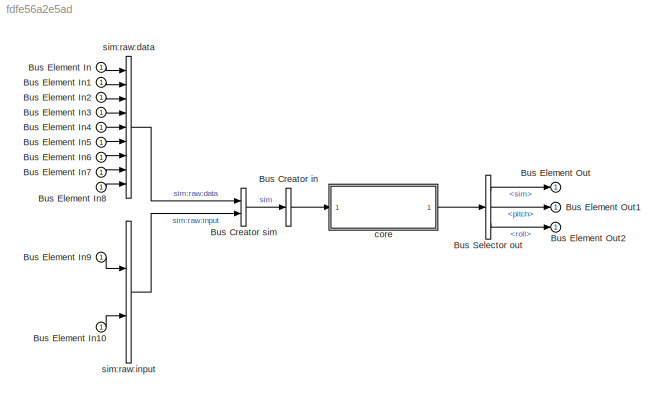
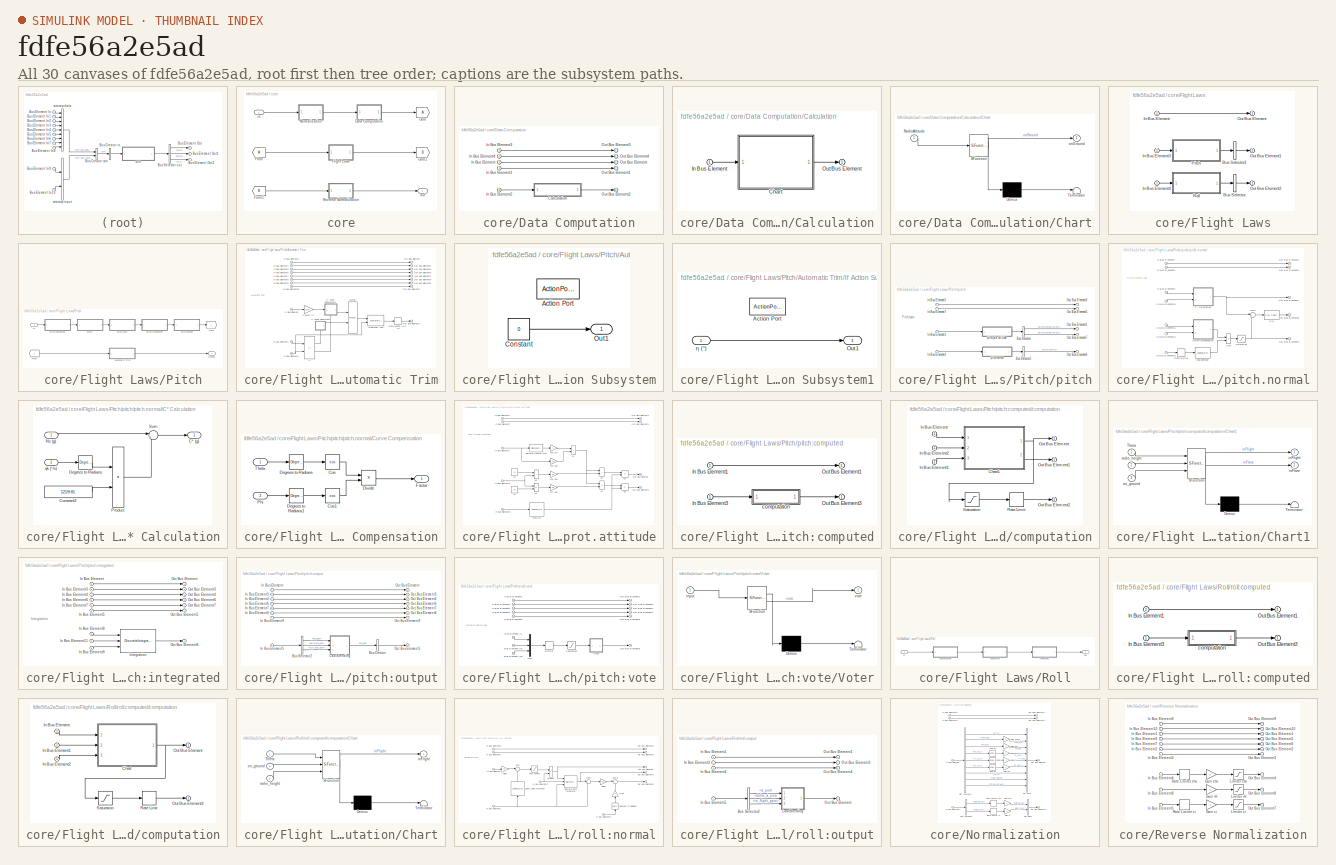
[diagram: thumbnail index - all 30 canvases of the model, root first then tree order]
MODEL slx_fdfe56a2e5ad
KIND model
CONFIG AbsTol = auto
CONFIG EnableMultiTasking = off
CONFIG FixedStep = 0.02
CONFIG MaxStep = auto
CONFIG MinStep = auto
CONFIG RelTol = 1e-3
CONFIG SampleTimeConstraint = Unconstrained
CONFIG SolverName = FixedStepAuto
CONFIG StartTime = 0.0
CONFIG StopTime = 10.0
BLOCK [BusCreator] Bus Creator in
  DisplayOption = bar
  InheritFromInputs = on
  Inputs = 1
  Ports = [1, 1]
BLOCK [BusCreator] Bus Creator sim
  DisplayOption = bar
  InheritFromInputs = on
  Inputs = 2
  Ports = [2, 1]
BLOCK [Inport] Bus Element In
BLOCK [Inport] Bus Element In1
BLOCK [Inport] Bus Element In10
BLOCK [Inport] Bus Element In2
BLOCK [Inport] Bus Element In3
BLOCK [Inport] Bus Element In4
BLOCK [Inport] Bus Element In5
BLOCK [Inport] Bus Element In6
BLOCK [Inport] Bus Element In7
BLOCK [Inport] Bus Element In8
BLOCK [Inport] Bus Element In9
BLOCK [Outport] Bus Element Out
BLOCK [Outport] Bus Element Out1
BLOCK [Outport] Bus Element Out2
BLOCK [BusSelector] Bus Selector out
  OutputSignals = sim,pitch,roll
  Ports = [1, 3]
BLOCK [SubSystem] core
  Ports = [1, 1]
  RequestExecContextInheritance = off
BLOCK [SubSystem] core/Data Computation
  Ports = [1, 1]
  RequestExecContextInheritance = off
BLOCK [SubSystem] core/Data Computation/Calculation
  Ports = [1, 1]
  RequestExecContextInheritance = off
BLOCK [SubSystem] core/Data Computation/Calculation/Chart
  ErrorFcn = Stateflow.Translate.translate
  PermitHierarchicalResolution = ExplicitOnly
  Ports = [1, 1]
  RequestExecContextInheritance = off
  SFBlockType = Chart
  TreatAsAtomicUnit = on
BLOCK [Demux] core/Data Computation/Calculation/Chart/ Demux 
  Outputs = 1
  Ports = [1, 1]
BLOCK [S-Function] core/Data Computation/Calculation/Chart/ SFunction 
  EnableBusSupport = on
  FunctionName = sf_sfun
  PortCounts = [1 2]
  Ports = [1, 2]
  SFcnIsStateOwnerBlock = off
  SFunctionDeploymentMode = off
  Tag = Stateflow S-Function 1
BLOCK [Terminator] core/Data Computation/Calculation/Chart/ Terminator 
BLOCK [Inport] core/Data Computation/Calculation/Chart/RadioAltitude
BLOCK [Outport] core/Data Computation/Calculation/Chart/onGround
BLOCK [Inport] core/Data Computation/Calculation/In Bus Element
BLOCK [Outport] core/Data Computation/Calculation/Out Bus Element
BLOCK [Inport] core/Data Computation/In Bus Element
BLOCK [Inport] core/Data Computation/In Bus Element1
BLOCK [Inport] core/Data Computation/In Bus Element2
BLOCK [Inport] core/Data Computation/In Bus Element3
BLOCK [Inport] core/Data Computation/In Bus Element4
BLOCK [Outport] core/Data Computation/Out Bus Element
BLOCK [Outport] core/Data Computation/Out Bus Element1
BLOCK [Outport] core/Data Computation/Out Bus Element2
BLOCK [Outport] core/Data Computation/Out Bus Element3
BLOCK [Outport] core/Data Computation/Out Bus Element4
BLOCK [SubSystem] core/Flight Laws
  Ports = [1, 1]
  RequestExecContextInheritance = off
BLOCK [BusSelector] core/Flight Laws/Bus Selector
  OutputAsBus = on
  OutputSignals = roll.roll:data:computed,roll.roll:normal,roll.roll:output
  Ports = [1, 1]
BLOCK [BusSelector] core/Flight Laws/Bus Selector1
  OutputAsBus = on
  OutputSignals = pitch.pitch:data:computed,pitch.pitch:normal,pitch.pitch:protection:attitude:min,pitch.pitch:protection:attitude:max,pitch.pitch:vote,pitch.pitch:integrated,pitch.pitch:output
  Ports = [1, 1]
BLOCK [Inport] core/Flight Laws/In Bus Element
BLOCK [Inport] core/Flight Laws/In Bus Element3
BLOCK [Inport] core/Flight Laws/In Bus Element4
BLOCK [Outport] core/Flight Laws/Out Bus Element
BLOCK [Outport] core/Flight Laws/Out Bus Element1
BLOCK [Outport] core/Flight Laws/Out Bus Element2
BLOCK [SubSystem] core/Flight Laws/Pitch
  Ports = [1, 1]
  RequestExecContextInheritance = off
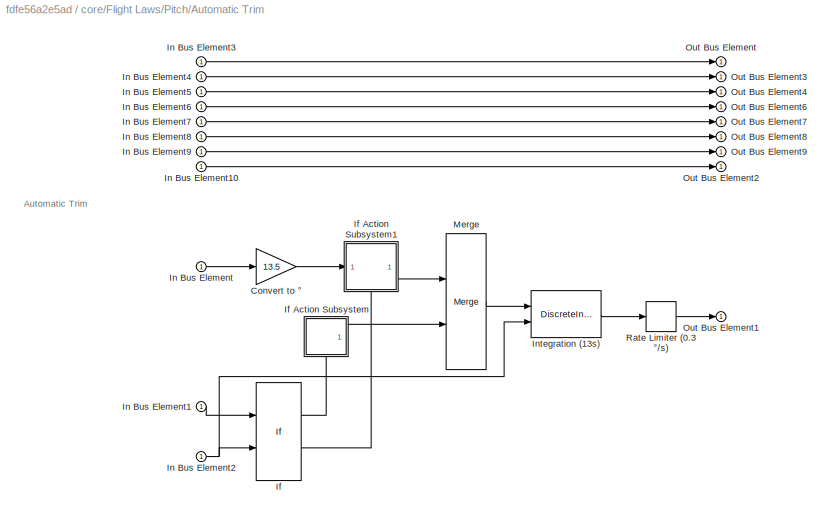
BLOCK [SubSystem] core/Flight Laws/Pitch/Automatic Trim
  Ports = [1, 1]
  RequestExecContextInheritance = off
BLOCK [Gain] core/Flight Laws/Pitch/Automatic Trim/Convert to °
  Gain = 13.5
BLOCK [If] core/Flight Laws/Pitch/Automatic Trim/If
  IfExpression = u2 == 0 | u1 > 1.25 | u1 < 0.5
  NumInputs = 2
  Ports = [2, 2]
BLOCK [SubSystem] core/Flight Laws/Pitch/Automatic Trim/If Action Subsystem
  NameLocation = top
  Ports = [0, 1, 0, 0, 0, 0, 0, 1]
  RequestExecContextInheritance = off
  TreatAsAtomicUnit = on
BLOCK [ActionPort] core/Flight Laws/Pitch/Automatic Trim/If Action Subsystem/Action Port
  InitializeStates = reset
BLOCK [Constant] core/Flight Laws/Pitch/Automatic Trim/If Action Subsystem/Constant
  Value = 0
BLOCK [Outport] core/Flight Laws/Pitch/Automatic Trim/If Action Subsystem/Out1
BLOCK [SubSystem] core/Flight Laws/Pitch/Automatic Trim/If Action Subsystem1
  NameLocation = top
  Ports = [1, 1, 0, 0, 0, 0, 0, 1]
  RequestExecContextInheritance = off
  TreatAsAtomicUnit = on
BLOCK [ActionPort] core/Flight Laws/Pitch/Automatic Trim/If Action Subsystem1/Action Port
BLOCK [Outport] core/Flight Laws/Pitch/Automatic Trim/If Action Subsystem1/Out1
BLOCK [Inport] core/Flight Laws/Pitch/Automatic Trim/If Action Subsystem1/η (°)
BLOCK [Inport] core/Flight Laws/Pitch/Automatic Trim/In Bus Element
BLOCK [Inport] core/Flight Laws/Pitch/Automatic Trim/In Bus Element1
BLOCK [Inport] core/Flight Laws/Pitch/Automatic Trim/In Bus Element10
BLOCK [Inport] core/Flight Laws/Pitch/Automatic Trim/In Bus Element2
BLOCK [Inport] core/Flight Laws/Pitch/Automatic Trim/In Bus Element3
BLOCK [Inport] core/Flight Laws/Pitch/Automatic Trim/In Bus Element4
BLOCK [Inport] core/Flight Laws/Pitch/Automatic Trim/In Bus Element5
BLOCK [Inport] core/Flight Laws/Pitch/Automatic Trim/In Bus Element6
BLOCK [Inport] core/Flight Laws/Pitch/Automatic Trim/In Bus Element7
BLOCK [Inport] core/Flight Laws/Pitch/Automatic Trim/In Bus Element8
BLOCK [Inport] core/Flight Laws/Pitch/Automatic Trim/In Bus Element9
BLOCK [DiscreteIntegrator] core/Flight Laws/Pitch/Automatic Trim/Integration (13s)
  ExternalReset = falling
  ICPrevOutput = DiscIntNeverNeededParam
  ICPrevScaledInput = DiscIntNeverNeededParam
  InitialConditionSetting = Auto
  LimitOutput = on
  LowerSaturationLimit = -11
  Ports = [2, 1]
  SampleTime = -1
  UpperSaturationLimit = 3.5
  gainval = 1/13
BLOCK [Merge] core/Flight Laws/Pitch/Automatic Trim/Merge
  Ports = [2, 1]
BLOCK [Outport] core/Flight Laws/Pitch/Automatic Trim/Out Bus Element
BLOCK [Outport] core/Flight Laws/Pitch/Automatic Trim/Out Bus Element1
BLOCK [Outport] core/Flight Laws/Pitch/Automatic Trim/Out Bus Element2
BLOCK [Outport] core/Flight Laws/Pitch/Automatic Trim/Out Bus Element3
BLOCK [Outport] core/Flight Laws/Pitch/Automatic Trim/Out Bus Element4
BLOCK [Outport] core/Flight Laws/Pitch/Automatic Trim/Out Bus Element6
BLOCK [Outport] core/Flight Laws/Pitch/Automatic Trim/Out Bus Element7
BLOCK [Outport] core/Flight Laws/Pitch/Automatic Trim/Out Bus Element8
BLOCK [Outport] core/Flight Laws/Pitch/Automatic Trim/Out Bus Element9
BLOCK [RateLimiter] core/Flight Laws/Pitch/Automatic Trim/Rate Limiter (0.3 °//s)
  FallingSlewLimit = -0.3
  RisingSlewLimit = 0.3
  SampleTimeMode = inherited
BLOCK [From] core/Flight Laws/Pitch/From
BLOCK [Goto] core/Flight Laws/Pitch/Goto
BLOCK [Outport] core/Flight Laws/Pitch/Output
BLOCK [Inport] core/Flight Laws/Pitch/in
BLOCK [SubSystem] core/Flight Laws/Pitch/pitch
  Ports = [1, 1]
  RequestExecContextInheritance = off
BLOCK [BusSelector] core/Flight Laws/Pitch/pitch/Bus Selector
  OutputSignals = pitch.pitch:protection:attitude:min,pitch.pitch:protection:attitude:max
  Ports = [1, 2]
BLOCK [BusSelector] core/Flight Laws/Pitch/pitch/Bus Selector1
  OutputSignals = pitch.pitch:normal
  Ports = [1, 1]
BLOCK [Inport] core/Flight Laws/Pitch/pitch/In Bus Element1
BLOCK [Inport] core/Flight Laws/Pitch/pitch/In Bus Element2
BLOCK [Inport] core/Flight Laws/Pitch/pitch/In Bus Element5
BLOCK [Inport] core/Flight Laws/Pitch/pitch/In Bus Element7
BLOCK [Outport] core/Flight Laws/Pitch/pitch/Out Bus Element1
BLOCK [Outport] core/Flight Laws/Pitch/pitch/Out Bus Element3
BLOCK [Outport] core/Flight Laws/Pitch/pitch/Out Bus Element5
BLOCK [Outport] core/Flight Laws/Pitch/pitch/Out Bus Element6
BLOCK [Outport] core/Flight Laws/Pitch/pitch/Out Bus Element7
BLOCK [SubSystem] core/Flight Laws/Pitch/pitch/pitch.normal
  Ports = [1, 1]
  RequestExecContextInheritance = off
BLOCK [SubSystem] core/Flight Laws/Pitch/pitch/pitch.normal/C* Calculation
  Ports = [2, 1]
  RequestExecContextInheritance = off
BLOCK [Outport] core/Flight Laws/Pitch/pitch/pitch.normal/C* Calculation/C* (g)
BLOCK [Constant] core/Flight Laws/Pitch/pitch/pitch.normal/C* Calculation/Constant2
  Value = 121/9.81
BLOCK [Reference] core/Flight Laws/Pitch/pitch/pitch.normal/C* Calculation/Degrees to Radians  REF=simulink_extras/Transformations/Degrees to
Radians
  Ports = [1, 1]
  SourceBlock = simulink_extras/Transformations/Degrees to\nRadians
  SourceProductBaseCode = SL
  SourceType = DegreesToRadians
BLOCK [Inport] core/Flight Laws/Pitch/pitch/pitch.normal/C* Calculation/Nz (g)
BLOCK [Product] core/Flight Laws/Pitch/pitch/pitch.normal/C* Calculation/Product
  Ports = [2, 1]
BLOCK [Sum] core/Flight Laws/Pitch/pitch/pitch.normal/C* Calculation/Sum
  Inputs = |++
  Ports = [2, 1]
BLOCK [Inport] core/Flight Laws/Pitch/pitch/pitch.normal/C* Calculation/qk (°//s)
  Port = 2
BLOCK [SubSystem] core/Flight Laws/Pitch/pitch/pitch.normal/Curve Compensation
  Ports = [2, 1]
  RequestExecContextInheritance = off
BLOCK [Trigonometry] core/Flight Laws/Pitch/pitch/pitch.normal/Curve Compensation/Cos
  Operator = cos
  Ports = [1, 1]
BLOCK [Trigonometry] core/Flight Laws/Pitch/pitch/pitch.normal/Curve Compensation/Cos1
  Operator = cos
  Ports = [1, 1]
BLOCK [Reference] core/Flight Laws/Pitch/pitch/pitch.normal/Curve Compensation/Degrees to Radians  REF=simulink_extras/Transformations/Degrees to
Radians
  Ports = [1, 1]
  SourceBlock = simulink_extras/Transformations/Degrees to\nRadians
  SourceProductBaseCode = SL
  SourceType = DegreesToRadians
BLOCK [Reference] core/Flight Laws/Pitch/pitch/pitch.normal/Curve Compensation/Degrees to Radians1  REF=simulink_extras/Transformations/Degrees to
Radians
  Ports = [1, 1]
  SourceBlock = simulink_extras/Transformations/Degrees to\nRadians
  SourceProductBaseCode = SL
  SourceType = DegreesToRadians
BLOCK [Product] core/Flight Laws/Pitch/pitch/pitch.normal/Curve Compensation/Divide
  Inputs = */
  Ports = [2, 1]
BLOCK [Outport] core/Flight Laws/Pitch/pitch/pitch.normal/Curve Compensation/Factor
BLOCK [Inport] core/Flight Laws/Pitch/pitch/pitch.normal/Curve Compensation/Phi
  Port = 2
BLOCK [Inport] core/Flight Laws/Pitch/pitch/pitch.normal/Curve Compensation/Theta
BLOCK [Inport] core/Flight Laws/Pitch/pitch/pitch.normal/In Bus Element10
BLOCK [Inport] core/Flight Laws/Pitch/pitch/pitch.normal/In Bus Element11
BLOCK [Inport] core/Flight Laws/Pitch/pitch/pitch.normal/In Bus Element12
BLOCK [Inport] core/Flight Laws/Pitch/pitch/pitch.normal/In Bus Element13
BLOCK [Inport] core/Flight Laws/Pitch/pitch/pitch.normal/In Bus Element6
BLOCK [Inport] core/Flight Laws/Pitch/pitch/pitch.normal/In Bus Element7
BLOCK [Inport] core/Flight Laws/Pitch/pitch/pitch.normal/In Bus Element9
BLOCK [Outport] core/Flight Laws/Pitch/pitch/pitch.normal/Out Bus Element4
BLOCK [Outport] core/Flight Laws/Pitch/pitch/pitch.normal/Out Bus Element6
BLOCK [Outport] core/Flight Laws/Pitch/pitch/pitch.normal/Out Bus Element7
BLOCK [Outport] core/Flight Laws/Pitch/pitch/pitch.normal/Out Bus Element8
BLOCK [Outport] core/Flight Laws/Pitch/pitch/pitch.normal/Out Bus Element9
BLOCK [Reference] core/Flight Laws/Pitch/pitch/pitch.normal/PID  REF=pid_lib/PID Controller
  Ports = [1, 1]
  SourceBlock = pid_lib/PID Controller
  SourceProductBaseCode = SL
  SourceType = PID 1dof
BLOCK [RateLimiter] core/Flight Laws/Pitch/pitch/pitch.normal/Rate Limiter
  FallingSlewLimit = -0.75
  RisingSlewLimit = 0.75
  SampleTimeMode = inherited
BLOCK [Saturate] core/Flight Laws/Pitch/pitch/pitch.normal/Saturation
  LowerLimit = -1.0
  UpperLimit = 2.5
BLOCK [Sum] core/Flight Laws/Pitch/pitch/pitch.normal/Sum
  IconShape = rectangular
  Ports = [2, 1]
BLOCK [Sum] core/Flight Laws/Pitch/pitch/pitch.normal/Sum1
  Inputs = |+-
  Ports = [2, 1]
BLOCK [Lookup_n-D] core/Flight Laws/Pitch/pitch/pitch.normal/load demand
  BreakpointsForDimension1 = [-1 0 1]
  InputPortMap = u0
  InternalRulePriority = Speed
  NumberOfTableDimensions = 1
  Ports = [1, 1]
  RndMeth = Simplest
  Table = [-2 0 1.5]
BLOCK [SubSystem] core/Flight Laws/Pitch/pitch/pitch.prot.attitude
  Ports = [1, 1]
  RequestExecContextInheritance = off
BLOCK [Sum] core/Flight Laws/Pitch/pitch/pitch.prot.attitude/53
  IconShape = rectangular
  Ports = [2, 1]
BLOCK [Sum] core/Flight Laws/Pitch/pitch/pitch.prot.attitude/54
  IconShape = rectangular
  Ports = [2, 1]
BLOCK [Sum] core/Flight Laws/Pitch/pitch/pitch.prot.attitude/60
  IconShape = rectangular
  Ports = [2, 1]
BLOCK [Constant] core/Flight Laws/Pitch/pitch/pitch.prot.attitude/61
  Value = 15
BLOCK [Product] core/Flight Laws/Pitch/pitch/pitch.prot.attitude/63
  Ports = [2, 1]
BLOCK [Sum] core/Flight Laws/Pitch/pitch/pitch.prot.attitude/64
  IconShape = rectangular
  Ports = [2, 1]
BLOCK [Sum] core/Flight Laws/Pitch/pitch/pitch.prot.attitude/66
  IconShape = rectangular
  Inputs = +-
  Ports = [2, 1]
BLOCK [Constant] core/Flight Laws/Pitch/pitch/pitch.prot.attitude/67
  Value = 30
BLOCK [Product] core/Flight Laws/Pitch/pitch/pitch.prot.attitude/68
  Ports = [2, 1]
BLOCK [DiscreteTransferFcn] core/Flight Laws/Pitch/pitch/pitch.prot.attitude/Discrete Transfer Fcn1
  Denominator = [1 -0.9632]
  InputPortMap = u0
  Numerator = [2.5 -2.5]
  Ports = [1, 1]
BLOCK [Lookup_n-D] core/Flight Laws/Pitch/pitch/pitch.prot.attitude/F193 LUT
  BreakpointsForDimension1 = [0 120 130 160 190 210 280 350]
  InputPortMap = u0
  InternalRulePriority = Speed
  NumberOfTableDimensions = 1
  Ports = [1, 1]
  RndMeth = Simplest
  Table = [2.2 2.2 1.9 1.35 1.05 0.58 0.45 0.41]
BLOCK [Inport] core/Flight Laws/Pitch/pitch/pitch.prot.attitude/In Bus Element3
BLOCK [Inport] core/Flight Laws/Pitch/pitch/pitch.prot.attitude/In Bus Element5
BLOCK [Inport] core/Flight Laws/Pitch/pitch/pitch.prot.attitude/In Bus Element7
BLOCK [Inport] core/Flight Laws/Pitch/pitch/pitch.prot.attitude/In Bus Element8
BLOCK [Inport] core/Flight Laws/Pitch/pitch/pitch.prot.attitude/In Bus Element9
BLOCK [Gain] core/Flight Laws/Pitch/pitch/pitch.prot.attitude/K76 (59)
  Gain = 0.5
BLOCK [Gain] core/Flight Laws/Pitch/pitch/pitch.prot.attitude/K77 (65)
  Gain = 0.5
BLOCK [Gain] core/Flight Laws/Pitch/pitch/pitch.prot.attitude/K78 (57)
BLOCK [Gain] core/Flight Laws/Pitch/pitch/pitch.prot.attitude/K79 (58)
  Gain = 1.5
BLOCK [Outport] core/Flight Laws/Pitch/pitch/pitch.prot.attitude/Out Bus Element
BLOCK [Outport] core/Flight Laws/Pitch/pitch/pitch.prot.attitude/Out Bus Element1
BLOCK [Outport] core/Flight Laws/Pitch/pitch/pitch.prot.attitude/Out Bus Element3
BLOCK [Outport] core/Flight Laws/Pitch/pitch/pitch.prot.attitude/Out Bus Element5
BLOCK [SubSystem] core/Flight Laws/Pitch/pitch:computed
  Ports = [1, 1]
  RequestExecContextInheritance = off
BLOCK [Inport] core/Flight Laws/Pitch/pitch:computed/In Bus Element1
BLOCK [Inport] core/Flight Laws/Pitch/pitch:computed/In Bus Element3
BLOCK [Outport] core/Flight Laws/Pitch/pitch:computed/Out Bus Element1
BLOCK [Outport] core/Flight Laws/Pitch/pitch:computed/Out Bus Element3
BLOCK [SubSystem] core/Flight Laws/Pitch/pitch:computed/computation
  Ports = [1, 1]
  RequestExecContextInheritance = off
BLOCK [SubSystem] core/Flight Laws/Pitch/pitch:computed/computation/Chart1
  ErrorFcn = Stateflow.Translate.translate
  PermitHierarchicalResolution = ExplicitOnly
  Ports = [3, 2]
  RequestExecContextInheritance = off
  SFBlockType = Chart
  TreatAsAtomicUnit = on
BLOCK [Demux] core/Flight Laws/Pitch/pitch:computed/computation/Chart1/ Demux 
  Outputs = 1
  Ports = [1, 1]
BLOCK [S-Function] core/Flight Laws/Pitch/pitch:computed/computation/Chart1/ SFunction 
  EnableBusSupport = on
  FunctionName = sf_sfun
  PortCounts = [3 3]
  Ports = [3, 3]
  SFcnIsStateOwnerBlock = off
  SFunctionDeploymentMode = off
  Tag = Stateflow S-Function 3
BLOCK [Terminator] core/Flight Laws/Pitch/pitch:computed/computation/Chart1/ Terminator 
BLOCK [Inport] core/Flight Laws/Pitch/pitch:computed/computation/Chart1/Theta
BLOCK [Outport] core/Flight Laws/Pitch/pitch:computed/computation/Chart1/inFlare
  Port = 2
BLOCK [Outport] core/Flight Laws/Pitch/pitch:computed/computation/Chart1/inFlight
BLOCK [Inport] core/Flight Laws/Pitch/pitch:computed/computation/Chart1/on_ground
  Port = 3
BLOCK [Inport] core/Flight Laws/Pitch/pitch:computed/computation/Chart1/radio_height
  Port = 2
BLOCK [Inport] core/Flight Laws/Pitch/pitch:computed/computation/In Bus Element
BLOCK [Inport] core/Flight Laws/Pitch/pitch:computed/computation/In Bus Element1
BLOCK [Inport] core/Flight Laws/Pitch/pitch:computed/computation/In Bus Element2
BLOCK [Outport] core/Flight Laws/Pitch/pitch:computed/computation/Out Bus Element
BLOCK [Outport] core/Flight Laws/Pitch/pitch:computed/computation/Out Bus Element1
BLOCK [Outport] core/Flight Laws/Pitch/pitch:computed/computation/Out Bus Element2
BLOCK [RateLimiter] core/Flight Laws/Pitch/pitch:computed/computation/Rate Limit
  FallingSlewLimit = -1/5
  RisingSlewLimit = 1/5
  SampleTimeMode = inherited
BLOCK [Saturate] core/Flight Laws/Pitch/pitch:computed/computation/Saturation
  LowerLimit = 0
  UpperLimit = 1
BLOCK [SubSystem] core/Flight Laws/Pitch/pitch:integrated
  Ports = [1, 1]
  RequestExecContextInheritance = off
BLOCK [Inport] core/Flight Laws/Pitch/pitch:integrated/In Bus Element
BLOCK [Inport] core/Flight Laws/Pitch/pitch:integrated/In Bus Element11
BLOCK [Inport] core/Flight Laws/Pitch/pitch:integrated/In Bus Element3
BLOCK [Inport] core/Flight Laws/Pitch/pitch:integrated/In Bus Element4
BLOCK [Inport] core/Flight Laws/Pitch/pitch:integrated/In Bus Element5
BLOCK [Inport] core/Flight Laws/Pitch/pitch:integrated/In Bus Element6
BLOCK [Inport] core/Flight Laws/Pitch/pitch:integrated/In Bus Element7
BLOCK [Inport] core/Flight Laws/Pitch/pitch:integrated/In Bus Element8
BLOCK [Inport] core/Flight Laws/Pitch/pitch:integrated/In Bus Element9
BLOCK [DiscreteIntegrator] core/Flight Laws/Pitch/pitch:integrated/Integration
  ExternalReset = rising
  ICPrevOutput = DiscIntNeverNeededParam
  ICPrevScaledInput = DiscIntNeverNeededParam
  InitialConditionSetting = Auto
  InitialConditionSource = external
  LimitOutput = on
  LowerSaturationLimit = -1.0
  NameLocation = top
  Ports = [3, 1]
  SampleTime = -1
  UpperSaturationLimit = 1.0
BLOCK [Outport] core/Flight Laws/Pitch/pitch:integrated/Out Bus Element
BLOCK [Outport] core/Flight Laws/Pitch/pitch:integrated/Out Bus Element3
BLOCK [Outport] core/Flight Laws/Pitch/pitch:integrated/Out Bus Element4
BLOCK [Outport] core/Flight Laws/Pitch/pitch:integrated/Out Bus Element5
BLOCK [Outport] core/Flight Laws/Pitch/pitch:integrated/Out Bus Element6
BLOCK [Outport] core/Flight Laws/Pitch/pitch:integrated/Out Bus Element7
BLOCK [Outport] core/Flight Laws/Pitch/pitch:integrated/Out Bus Element8
BLOCK [SubSystem] core/Flight Laws/Pitch/pitch:output
  Ports = [1, 1]
  RequestExecContextInheritance = off
BLOCK [BusCreator] core/Flight Laws/Pitch/pitch:output/Bus Creator
  DisplayOption = bar
  InheritFromInputs = on
  Inputs = 1
  Ports = [1, 1]
BLOCK [BusSelector] core/Flight Laws/Pitch/pitch:output/Bus Selector2
  OutputSignals = pitch.pitch:integrated.eta_pos,sim.sim:input.delta_eta_pos,pitch.pitch:data:computed.in_flight_gain
  Ports = [1, 3]
BLOCK [Inport] core/Flight Laws/Pitch/pitch:output/In Bus Element
BLOCK [Inport] core/Flight Laws/Pitch/pitch:output/In Bus Element3
BLOCK [Inport] core/Flight Laws/Pitch/pitch:output/In Bus Element4
BLOCK [Inport] core/Flight Laws/Pitch/pitch:output/In Bus Element5
BLOCK [Inport] core/Flight Laws/Pitch/pitch:output/In Bus Element6
BLOCK [Inport] core/Flight Laws/Pitch/pitch:output/In Bus Element7
BLOCK [Inport] core/Flight Laws/Pitch/pitch:output/In Bus Element8
BLOCK [Inport] core/Flight Laws/Pitch/pitch:output/In Bus Element9
BLOCK [SubSystem] core/Flight Laws/Pitch/pitch:output/Law Blending
  Ports = [3, 1]
  ReferencedSubsystem = fbw_law_blending
  RequestExecContextInheritance = off
BLOCK [Outport] core/Flight Laws/Pitch/pitch:output/Out Bus Element
BLOCK [Outport] core/Flight Laws/Pitch/pitch:output/Out Bus Element3
BLOCK [Outport] core/Flight Laws/Pitch/pitch:output/Out Bus Element4
BLOCK [Outport] core/Flight Laws/Pitch/pitch:output/Out Bus Element5
BLOCK [Outport] core/Flight Laws/Pitch/pitch:output/Out Bus Element6
BLOCK [Outport] core/Flight Laws/Pitch/pitch:output/Out Bus Element7
BLOCK [Outport] core/Flight Laws/Pitch/pitch:output/Out Bus Element8
BLOCK [Outport] core/Flight Laws/Pitch/pitch:output/Out Bus Element9
BLOCK [SubSystem] core/Flight Laws/Pitch/pitch:vote
  Ports = [1, 1]
  RequestExecContextInheritance = off
BLOCK [Inport] core/Flight Laws/Pitch/pitch:vote/Bus Element In
BLOCK [Inport] core/Flight Laws/Pitch/pitch:vote/Bus Element In1
BLOCK [Inport] core/Flight Laws/Pitch/pitch:vote/Bus Element In2
BLOCK [Inport] core/Flight Laws/Pitch/pitch:vote/In Bus Element1
BLOCK [Inport] core/Flight Laws/Pitch/pitch:vote/In Bus Element2
BLOCK [Inport] core/Flight Laws/Pitch/pitch:vote/In Bus Element3
BLOCK [Inport] core/Flight Laws/Pitch/pitch:vote/In Bus Element4
BLOCK [Inport] core/Flight Laws/Pitch/pitch:vote/In Bus Element5
BLOCK [RateLimiter] core/Flight Laws/Pitch/pitch:vote/Limiter
  FallingSlewLimit = -30
  NameLocation = top
  RisingSlewLimit = 30
  SampleTimeMode = inherited
BLOCK [Mux] core/Flight Laws/Pitch/pitch:vote/Mux
  DisplayOption = bar
  Inputs = 3
  Ports = [3, 1]
BLOCK [Outport] core/Flight Laws/Pitch/pitch:vote/Out Bus Element1
BLOCK [Outport] core/Flight Laws/Pitch/pitch:vote/Out Bus Element2
BLOCK [Outport] core/Flight Laws/Pitch/pitch:vote/Out Bus Element3
BLOCK [Outport] core/Flight Laws/Pitch/pitch:vote/Out Bus Element4
BLOCK [Outport] core/Flight Laws/Pitch/pitch:vote/Out Bus Element5
BLOCK [Outport] core/Flight Laws/Pitch/pitch:vote/Out Bus Element6
BLOCK [Saturate] core/Flight Laws/Pitch/pitch:vote/Saturation
  LowerLimit = -5
  NameLocation = top
  UpperLimit = 5
BLOCK [SubSystem] core/Flight Laws/Pitch/pitch:vote/Voter
  ErrorFcn = Stateflow.Translate.translate
  NameLocation = top
  PermitHierarchicalResolution = ExplicitOnly
  Ports = [1, 1]
  RequestExecContextInheritance = off
  SFBlockType = MATLAB Function
  TreatAsAtomicUnit = on
BLOCK [Demux] core/Flight Laws/Pitch/pitch:vote/Voter/ Demux 
  Outputs = 1
  Ports = [1, 1]
BLOCK [S-Function] core/Flight Laws/Pitch/pitch:vote/Voter/ SFunction 
  EnableBusSupport = on
  FunctionName = sf_sfun
  PortCounts = [1 2]
  Ports = [1, 2]
  SFcnIsStateOwnerBlock = off
  SFunctionDeploymentMode = off
  Tag = Stateflow S-Function 4
BLOCK [Terminator] core/Flight Laws/Pitch/pitch:vote/Voter/ Terminator 
BLOCK [Inport] core/Flight Laws/Pitch/pitch:vote/Voter/input
BLOCK [Outport] core/Flight Laws/Pitch/pitch:vote/Voter/vote
BLOCK [SubSystem] core/Flight Laws/Roll
  Ports = [1, 1]
  RequestExecContextInheritance = off
BLOCK [Inport] core/Flight Laws/Roll/in
BLOCK [Outport] core/Flight Laws/Roll/out
BLOCK [SubSystem] core/Flight Laws/Roll/roll:computed
  Ports = [1, 1]
  RequestExecContextInheritance = off
BLOCK [Inport] core/Flight Laws/Roll/roll:computed/In Bus Element1
BLOCK [Inport] core/Flight Laws/Roll/roll:computed/In Bus Element3
BLOCK [Outport] core/Flight Laws/Roll/roll:computed/Out Bus Element1
BLOCK [Outport] core/Flight Laws/Roll/roll:computed/Out Bus Element3
BLOCK [SubSystem] core/Flight Laws/Roll/roll:computed/computation
  Ports = [1, 1]
  RequestExecContextInheritance = off
BLOCK [SubSystem] core/Flight Laws/Roll/roll:computed/computation/Chart
  ErrorFcn = Stateflow.Translate.translate
  PermitHierarchicalResolution = ExplicitOnly
  Ports = [3, 1]
  RequestExecContextInheritance = off
  SFBlockType = Chart
  TreatAsAtomicUnit = on
BLOCK [Demux] core/Flight Laws/Roll/roll:computed/computation/Chart/ Demux 
  Outputs = 1
  Ports = [1, 1]
BLOCK [S-Function] core/Flight Laws/Roll/roll:computed/computation/Chart/ SFunction 
  EnableBusSupport = on
  FunctionName = sf_sfun
  PortCounts = [3 2]
  Ports = [3, 2]
  SFcnIsStateOwnerBlock = off
  SFunctionDeploymentMode = off
  Tag = Stateflow S-Function 5
BLOCK [Terminator] core/Flight Laws/Roll/roll:computed/computation/Chart/ Terminator 
BLOCK [Inport] core/Flight Laws/Roll/roll:computed/computation/Chart/Theta
BLOCK [Outport] core/Flight Laws/Roll/roll:computed/computation/Chart/inFlight
BLOCK [Inport] core/Flight Laws/Roll/roll:computed/computation/Chart/on_ground
  Port = 2
BLOCK [Inport] core/Flight Laws/Roll/roll:computed/computation/Chart/radio_height
  Port = 3
BLOCK [Inport] core/Flight Laws/Roll/roll:computed/computation/In Bus Element
BLOCK [Inport] core/Flight Laws/Roll/roll:computed/computation/In Bus Element1
BLOCK [Inport] core/Flight Laws/Roll/roll:computed/computation/In Bus Element2
BLOCK [Outport] core/Flight Laws/Roll/roll:computed/computation/Out Bus Element
BLOCK [Outport] core/Flight Laws/Roll/roll:computed/computation/Out Bus Element2
BLOCK [RateLimiter] core/Flight Laws/Roll/roll:computed/computation/Rate Limit
  FallingSlewLimit = -1/0.5
  RisingSlewLimit = 1/0.5
  SampleTimeMode = inherited
BLOCK [Saturate] core/Flight Laws/Roll/roll:computed/computation/Saturation
  LowerLimit = 0
  UpperLimit = 1
BLOCK [SubSystem] core/Flight Laws/Roll/roll:normal
  Ports = [1, 1]
  RequestExecContextInheritance = off
BLOCK [Lookup_n-D] core/Flight Laws/Roll/roll:normal/Bank Angle Protection
  BreakpointsForDimension1 = [-90,-66,-33,0,33,66,90]
  InputPortMap = u0
  InternalRulePriority = Speed
  NameLocation = left
  NumberOfTableDimensions = 1
  Ports = [1, 1]
  RndMeth = Simplest
  Table = [15,15,0,0,0,-15,-15]
BLOCK [Reference] core/Flight Laws/Roll/roll:normal/Degrees to Radians  REF=simulink_extras/Transformations/Degrees to
Radians
  NameLocation = right
  Ports = [1, 1]
  SourceBlock = simulink_extras/Transformations/Degrees to\nRadians
  SourceProductBaseCode = SL
  SourceType = DegreesToRadians
BLOCK [DiscreteIntegrator] core/Flight Laws/Roll/roll:normal/Discrete-Time Integrator
  ExternalReset = rising
  ICPrevOutput = DiscIntNeverNeededParam
  ICPrevScaledInput = DiscIntNeverNeededParam
  InitialConditionSetting = Auto
  InitialConditionSource = external
  LimitOutput = on
  LowerSaturationLimit = -66
  Ports = [3, 1]
  SampleTime = -1
  UpperSaturationLimit = 66
BLOCK [Gain] core/Flight Laws/Roll/roll:normal/Gain1
  Gain = 15
BLOCK [Gain] core/Flight Laws/Roll/roll:normal/Gain2
  Gain = -0.2
BLOCK [Inport] core/Flight Laws/Roll/roll:normal/In Bus Element
BLOCK [Inport] core/Flight Laws/Roll/roll:normal/In Bus Element1
BLOCK [Inport] core/Flight Laws/Roll/roll:normal/In Bus Element2
BLOCK [Inport] core/Flight Laws/Roll/roll:normal/In Bus Element3
BLOCK [Inport] core/Flight Laws/Roll/roll:normal/In Bus Element5
BLOCK [Inport] core/Flight Laws/Roll/roll:normal/In Bus Element7
BLOCK [Outport] core/Flight Laws/Roll/roll:normal/Out Bus Element
BLOCK [Outport] core/Flight Laws/Roll/roll:normal/Out Bus Element1
BLOCK [Outport] core/Flight Laws/Roll/roll:normal/Out Bus Element3
BLOCK [Outport] core/Flight Laws/Roll/roll:normal/Out Bus Element5
BLOCK [Outport] core/Flight Laws/Roll/roll:normal/Out Bus Element6
BLOCK [Product] core/Flight Laws/Roll/roll:normal/Product
  Ports = [2, 1]
BLOCK [Saturate] core/Flight Laws/Roll/roll:normal/Rate Limiter
  LowerLimit = -15
  UpperLimit = 15
BLOCK [Sum] core/Flight Laws/Roll/roll:normal/Sum
  Inputs = |++
  Ports = [2, 1]
BLOCK [Sum] core/Flight Laws/Roll/roll:normal/Sum1
  Inputs = |+-
  Ports = [2, 1]
BLOCK [Sum] core/Flight Laws/Roll/roll:normal/Sum3
  Inputs = |++
  Ports = [2, 1]
BLOCK [Gain] core/Flight Laws/Roll/roll:normal/p-Kp
  Gain = 5
  NameLocation = right
BLOCK [SubSystem] core/Flight Laws/Roll/roll:output
  Ports = [1, 1]
  RequestExecContextInheritance = off
BLOCK [BusSelector] core/Flight Laws/Roll/roll:output/Bus Selector2
  OutputSignals = roll.roll:normal.xi_pos,sim.sim:input.delta_xi_pos,roll.roll:data:computed.in_flight_gain
  Ports = [1, 3]
BLOCK [Inport] core/Flight Laws/Roll/roll:output/In Bus Element1
BLOCK [Inport] core/Flight Laws/Roll/roll:output/In Bus Element3
BLOCK [Inport] core/Flight Laws/Roll/roll:output/In Bus Element4
BLOCK [Inport] core/Flight Laws/Roll/roll:output/In Bus Element5
BLOCK [SubSystem] core/Flight Laws/Roll/roll:output/Law Blending
  Ports = [3, 1]
  ReferencedSubsystem = fbw_law_blending
  RequestExecContextInheritance = off
BLOCK [Outport] core/Flight Laws/Roll/roll:output/Out Bus Element
BLOCK [Outport] core/Flight Laws/Roll/roll:output/Out Bus Element1
BLOCK [Outport] core/Flight Laws/Roll/roll:output/Out Bus Element3
BLOCK [Outport] core/Flight Laws/Roll/roll:output/Out Bus Element4
BLOCK [From] core/From
BLOCK [From] core/From1
  GotoTag = B
BLOCK [Goto] core/Goto
BLOCK [Goto] core/Goto1
  GotoTag = B
BLOCK [SubSystem] core/Normalization
  Ports = [1, 1]
  RequestExecContextInheritance = off
BLOCK [Gain] core/Normalization/Gain Phi
  Gain = -1
BLOCK [Gain] core/Normalization/Gain Theta
  Gain = -1
BLOCK [Gain] core/Normalization/Gain eta
  Gain = -1
BLOCK [Gain] core/Normalization/Gain pk
  Gain = -1
BLOCK [Gain] core/Normalization/Gain qk
  Gain = -1
BLOCK [Gain] core/Normalization/Gain rk
  Gain = -1
BLOCK [Gain] core/Normalization/Gain xi
  Gain = -1
BLOCK [Inport] core/Normalization/In Bus Element
BLOCK [Inport] core/Normalization/In Bus Element1
BLOCK [Inport] core/Normalization/In Bus Element2
BLOCK [Inport] core/Normalization/In Bus Element3
BLOCK [Outport] core/Normalization/Out Bus Element
BLOCK [Outport] core/Normalization/Out Bus Element1
BLOCK [Outport] core/Normalization/Out Bus Element2
BLOCK [Outport] core/Normalization/Out Bus Element3
BLOCK [Reference] core/Normalization/R2D pk  REF=simulink_extras/Transformations/Radians
to Degrees
  Ports = [1, 1]
  SourceBlock = simulink_extras/Transformations/Radians\nto Degrees
  SourceProductBaseCode = SL
  SourceType = RadiansToDegrees
BLOCK [Reference] core/Normalization/R2D qk  REF=simulink_extras/Transformations/Radians
to Degrees
  Ports = [1, 1]
  SourceBlock = simulink_extras/Transformations/Radians\nto Degrees
  SourceProductBaseCode = SL
  SourceType = RadiansToDegrees
BLOCK [Reference] core/Normalization/R2D rk  REF=simulink_extras/Transformations/Radians
to Degrees
  Ports = [1, 1]
  SourceBlock = simulink_extras/Transformations/Radians\nto Degrees
  SourceProductBaseCode = SL
  SourceType = RadiansToDegrees
BLOCK [RateLimiter] core/Normalization/Rate Limiter eta
  FallingSlewLimit = -10
  RisingSlewLimit = 10
  SampleTimeMode = inherited
BLOCK [RateLimiter] core/Normalization/Rate Limiter xi
  FallingSlewLimit = -10
  RisingSlewLimit = 10
  SampleTimeMode = inherited
BLOCK [BusCreator] core/Normalization/sim:data
  DisplayOption = bar
  InheritFromInputs = on
  Inputs = 9
  NameLocation = top
  Ports = [9, 1]
BLOCK [BusCreator] core/Normalization/sim:input
  DisplayOption = bar
  InheritFromInputs = on
  Inputs = 2
  Ports = [2, 1]
BLOCK [BusSelector] core/Normalization/sim:raw:data
  NameLocation = top
  OutputSignals = nz_g,Theta_deg,Phi_deg,qk_rad_s,rk_rad_s,pk_rad_s,Vk_kt,radio_height_ft,CG_percent_MAC
  Ports = [1, 9]
BLOCK [BusSelector] core/Normalization/sim:raw:input
  OutputSignals = delta_eta_pos,delta_xi_pos
  Ports = [1, 2]
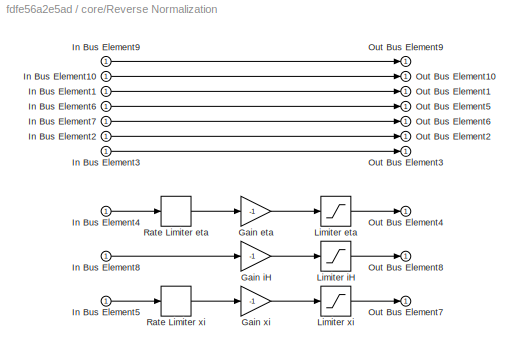
BLOCK [SubSystem] core/Reverse Normalization
  Ports = [1, 1]
  RequestExecContextInheritance = off
BLOCK [Gain] core/Reverse Normalization/Gain eta
  Gain = -1
BLOCK [Gain] core/Reverse Normalization/Gain iH
  Gain = -1
BLOCK [Gain] core/Reverse Normalization/Gain xi
  Gain = -1
BLOCK [Inport] core/Reverse Normalization/In Bus Element1
BLOCK [Inport] core/Reverse Normalization/In Bus Element10
BLOCK [Inport] core/Reverse Normalization/In Bus Element2
BLOCK [Inport] core/Reverse Normalization/In Bus Element3
BLOCK [Inport] core/Reverse Normalization/In Bus Element4
BLOCK [Inport] core/Reverse Normalization/In Bus Element5
BLOCK [Inport] core/Reverse Normalization/In Bus Element6
BLOCK [Inport] core/Reverse Normalization/In Bus Element7
BLOCK [Inport] core/Reverse Normalization/In Bus Element8
BLOCK [Inport] core/Reverse Normalization/In Bus Element9
BLOCK [Saturate] core/Reverse Normalization/Limiter eta
  LowerLimit = -1.0
  UpperLimit = 1.0
BLOCK [Saturate] core/Reverse Normalization/Limiter iH
  LowerLimit = -3.5
  UpperLimit = 13
BLOCK [Saturate] core/Reverse Normalization/Limiter xi
  LowerLimit = -1.0
  UpperLimit = 1.0
BLOCK [Outport] core/Reverse Normalization/Out Bus Element1
BLOCK [Outport] core/Reverse Normalization/Out Bus Element10
BLOCK [Outport] core/Reverse Normalization/Out Bus Element2
BLOCK [Outport] core/Reverse Normalization/Out Bus Element3
BLOCK [Outport] core/Reverse Normalization/Out Bus Element4
BLOCK [Outport] core/Reverse Normalization/Out Bus Element5
BLOCK [Outport] core/Reverse Normalization/Out Bus Element6
BLOCK [Outport] core/Reverse Normalization/Out Bus Element7
BLOCK [Outport] core/Reverse Normalization/Out Bus Element8
BLOCK [Outport] core/Reverse Normalization/Out Bus Element9
BLOCK [RateLimiter] core/Reverse Normalization/Rate Limiter eta
  FallingSlewLimit = -2.0
  RisingSlewLimit = 2.0
  SampleTimeMode = inherited
BLOCK [RateLimiter] core/Reverse Normalization/Rate Limiter xi
  FallingSlewLimit = -2
  RisingSlewLimit = 2
  SampleTimeMode = inherited
BLOCK [Inport] core/in
BLOCK [Outport] core/out
BLOCK [BusCreator] sim:raw:data
  DisplayOption = bar
  InheritFromInputs = on
  Inputs = 9
  Ports = [9, 1]
BLOCK [BusCreator] sim:raw:input
  DisplayOption = bar
  InheritFromInputs = on
  Inputs = 2
  Ports = [2, 1]
ANNOTATION core/Flight Laws/Pitch/Automatic Trim: Automatic Trim
ANNOTATION core/Flight Laws/Pitch/pitch: Pitch Laws
ANNOTATION core/Flight Laws/Pitch/pitch/pitch.normal: Pitch Normal Law
ANNOTATION core/Flight Laws/Pitch/pitch/pitch.prot.attitude: Pitch Attitude Protection
ANNOTATION core/Flight Laws/Pitch/pitch:integrated: Integration
ANNOTATION core/Flight Laws/Pitch/pitch:vote: Voting of active law
ANNOTATION core/Flight Laws/Roll/roll:normal: Roll Normal Law
LINE Bus Creator in:1 -> core:1
LINE Bus Creator sim:1 -> Bus Creator in:1
LINE Bus Element In10:1 -> sim:raw:input:2
LINE Bus Element In1:1 -> sim:raw:data:2
LINE Bus Element In2:1 -> sim:raw:data:3
LINE Bus Element In3:1 -> sim:raw:data:4
LINE Bus Element In4:1 -> sim:raw:data:5
LINE Bus Element In5:1 -> sim:raw:data:6
LINE Bus Element In6:1 -> sim:raw:data:7
LINE Bus Element In7:1 -> sim:raw:data:8
LINE Bus Element In8:1 -> sim:raw:data:9
LINE Bus Element In9:1 -> sim:raw:input:1
LINE Bus Element In:1 -> sim:raw:data:1
LINE Bus Selector out:1 -> Bus Element Out:1
LINE Bus Selector out:2 -> Bus Element Out1:1
LINE Bus Selector out:3 -> Bus Element Out2:1
LINE core/Data Computation/Calculation/Chart:1 -> core/Data Computation/Calculation/Out Bus Element:1
LINE core/Data Computation/Calculation/In Bus Element:1 -> core/Data Computation/Calculation/Chart:1
LINE core/Data Computation/Calculation:1 -> core/Data Computation/Out Bus Element2:1
LINE core/Data Computation/In Bus Element1:1 -> core/Data Computation/Out Bus Element1:1
LINE core/Data Computation/In Bus Element2:1 -> core/Data Computation/Calculation:1
LINE core/Data Computation/In Bus Element3:1 -> core/Data Computation/Out Bus Element3:1
LINE core/Data Computation/In Bus Element4:1 -> core/Data Computation/Out Bus Element4:1
LINE core/Data Computation/In Bus Element:1 -> core/Data Computation/Out Bus Element:1
LINE core/Data Computation:1 -> core/Goto:1
LINE core/Flight Laws/Bus Selector1:1 -> core/Flight Laws/Out Bus Element1:1
LINE core/Flight Laws/Bus Selector:1 -> core/Flight Laws/Out Bus Element2:1
LINE core/Flight Laws/In Bus Element3:1 -> core/Flight Laws/Pitch:1
LINE core/Flight Laws/In Bus Element4:1 -> core/Flight Laws/Roll:1
LINE core/Flight Laws/In Bus Element:1 -> core/Flight Laws/Out Bus Element:1
LINE core/Flight Laws/Pitch/Automatic Trim/Convert to °:1 -> core/Flight Laws/Pitch/Automatic Trim/If Action Subsystem1:1
LINE core/Flight Laws/Pitch/Automatic Trim/If Action Subsystem/Constant:1 -> core/Flight Laws/Pitch/Automatic Trim/If Action Subsystem/Out1:1
LINE core/Flight Laws/Pitch/Automatic Trim/If Action Subsystem1/η (°):1 -> core/Flight Laws/Pitch/Automatic Trim/If Action Subsystem1/Out1:1
LINE core/Flight Laws/Pitch/Automatic Trim/If Action Subsystem1:1 -> core/Flight Laws/Pitch/Automatic Trim/Merge:1
LINE core/Flight Laws/Pitch/Automatic Trim/If Action Subsystem:1 -> core/Flight Laws/Pitch/Automatic Trim/Merge:2
LINE core/Flight Laws/Pitch/Automatic Trim/If:1 -> core/Flight Laws/Pitch/Automatic Trim/If Action Subsystem:ifaction
LINE core/Flight Laws/Pitch/Automatic Trim/If:2 -> core/Flight Laws/Pitch/Automatic Trim/If Action Subsystem1:ifaction
LINE core/Flight Laws/Pitch/Automatic Trim/In Bus Element10:1 -> core/Flight Laws/Pitch/Automatic Trim/Out Bus Element2:1
LINE core/Flight Laws/Pitch/Automatic Trim/In Bus Element1:1 -> core/Flight Laws/Pitch/Automatic Trim/If:1
NET core/Flight Laws/Pitch/Automatic Trim/In Bus Element2:1 -> core/Flight Laws/Pitch/Automatic Trim/If:2, core/Flight Laws/Pitch/Automatic Trim/Integration (13s):2
LINE core/Flight Laws/Pitch/Automatic Trim/In Bus Element3:1 -> core/Flight Laws/Pitch/Automatic Trim/Out Bus Element:1
LINE core/Flight Laws/Pitch/Automatic Trim/In Bus Element4:1 -> core/Flight Laws/Pitch/Automatic Trim/Out Bus Element3:1
LINE core/Flight Laws/Pitch/Automatic Trim/In Bus Element5:1 -> core/Flight Laws/Pitch/Automatic Trim/Out Bus Element4:1
LINE core/Flight Laws/Pitch/Automatic Trim/In Bus Element6:1 -> core/Flight Laws/Pitch/Automatic Trim/Out Bus Element6:1
LINE core/Flight Laws/Pitch/Automatic Trim/In Bus Element7:1 -> core/Flight Laws/Pitch/Automatic Trim/Out Bus Element7:1
LINE core/Flight Laws/Pitch/Automatic Trim/In Bus Element8:1 -> core/Flight Laws/Pitch/Automatic Trim/Out Bus Element8:1
LINE core/Flight Laws/Pitch/Automatic Trim/In Bus Element9:1 -> core/Flight Laws/Pitch/Automatic Trim/Out Bus Element9:1
LINE core/Flight Laws/Pitch/Automatic Trim/In Bus Element:1 -> core/Flight Laws/Pitch/Automatic Trim/Convert to °:1
LINE core/Flight Laws/Pitch/Automatic Trim/Integration (13s):1 -> core/Flight Laws/Pitch/Automatic Trim/Rate Limiter (0.3 °//s):1
LINE core/Flight Laws/Pitch/Automatic Trim/Merge:1 -> core/Flight Laws/Pitch/Automatic Trim/Integration (13s):1
LINE core/Flight Laws/Pitch/Automatic Trim/Rate Limiter (0.3 °//s):1 -> core/Flight Laws/Pitch/Automatic Trim/Out Bus Element1:1
LINE core/Flight Laws/Pitch/Automatic Trim:1 -> core/Flight Laws/Pitch/Output:1
LINE core/Flight Laws/Pitch/From:1 -> core/Flight Laws/Pitch/Automatic Trim:1
LINE core/Flight Laws/Pitch/in:1 -> core/Flight Laws/Pitch/pitch:computed:1
LINE core/Flight Laws/Pitch/pitch/Bus Selector1:1 -> core/Flight Laws/Pitch/pitch/Out Bus Element6:1
LINE core/Flight Laws/Pitch/pitch/Bus Selector:1 -> core/Flight Laws/Pitch/pitch/Out Bus Element1:1
LINE core/Flight Laws/Pitch/pitch/Bus Selector:2 -> core/Flight Laws/Pitch/pitch/Out Bus Element7:1
LINE core/Flight Laws/Pitch/pitch/In Bus Element1:1 -> core/Flight Laws/Pitch/pitch/pitch.prot.attitude:1
LINE core/Flight Laws/Pitch/pitch/In Bus Element2:1 -> core/Flight Laws/Pitch/pitch/pitch.normal:1
LINE core/Flight Laws/Pitch/pitch/In Bus Element5:1 -> core/Flight Laws/Pitch/pitch/Out Bus Element3:1
LINE core/Flight Laws/Pitch/pitch/In Bus Element7:1 -> core/Flight Laws/Pitch/pitch/Out Bus Element5:1
LINE core/Flight Laws/Pitch/pitch/pitch.normal/C* Calculation/Constant2:1 -> core/Flight Laws/Pitch/pitch/pitch.normal/C* Calculation/Product:2
LINE core/Flight Laws/Pitch/pitch/pitch.normal/C* Calculation/Degrees to Radians:1 -> core/Flight Laws/Pitch/pitch/pitch.normal/C* Calculation/Product:1
LINE core/Flight Laws/Pitch/pitch/pitch.normal/C* Calculation/Nz (g):1 -> core/Flight Laws/Pitch/pitch/pitch.normal/C* Calculation/Sum:1
LINE core/Flight Laws/Pitch/pitch/pitch.normal/C* Calculation/Product:1 -> core/Flight Laws/Pitch/pitch/pitch.normal/C* Calculation/Sum:2
LINE core/Flight Laws/Pitch/pitch/pitch.normal/C* Calculation/Sum:1 -> core/Flight Laws/Pitch/pitch/pitch.normal/C* Calculation/C* (g):1
LINE core/Flight Laws/Pitch/pitch/pitch.normal/C* Calculation/qk (°//s):1 -> core/Flight Laws/Pitch/pitch/pitch.normal/C* Calculation/Degrees to Radians:1
NET core/Flight Laws/Pitch/pitch/pitch.normal/C* Calculation:1 -> core/Flight Laws/Pitch/pitch/pitch.normal/Out Bus Element7:1, core/Flight Laws/Pitch/pitch/pitch.normal/Sum1:1
LINE core/Flight Laws/Pitch/pitch/pitch.normal/Curve Compensation/Cos1:1 -> core/Flight Laws/Pitch/pitch/pitch.normal/Curve Compensation/Divide:2
LINE core/Flight Laws/Pitch/pitch/pitch.normal/Curve Compensation/Cos:1 -> core/Flight Laws/Pitch/pitch/pitch.normal/Curve Compensation/Divide:1
LINE core/Flight Laws/Pitch/pitch/pitch.normal/Curve Compensation/Degrees to Radians1:1 -> core/Flight Laws/Pitch/pitch/pitch.normal/Curve Compensation/Cos1:1
LINE core/Flight Laws/Pitch/pitch/pitch.normal/Curve Compensation/Degrees to Radians:1 -> core/Flight Laws/Pitch/pitch/pitch.normal/Curve Compensation/Cos:1
LINE core/Flight Laws/Pitch/pitch/pitch.normal/Curve Compensation/Divide:1 -> core/Flight Laws/Pitch/pitch/pitch.normal/Curve Compensation/Factor:1
LINE core/Flight Laws/Pitch/pitch/pitch.normal/Curve Compensation/Phi:1 -> core/Flight Laws/Pitch/pitch/pitch.normal/Curve Compensation/Degrees to Radians1:1
LINE core/Flight Laws/Pitch/pitch/pitch.normal/Curve Compensation/Theta:1 -> core/Flight Laws/Pitch/pitch/pitch.normal/Curve Compensation/Degrees to Radians:1
LINE core/Flight Laws/Pitch/pitch/pitch.normal/Curve Compensation:1 -> core/Flight Laws/Pitch/pitch/pitch.normal/Sum:1
LINE core/Flight Laws/Pitch/pitch/pitch.normal/In Bus Element10:1 -> core/Flight Laws/Pitch/pitch/pitch.normal/C* Calculation:2
LINE core/Flight Laws/Pitch/pitch/pitch.normal/In Bus Element11:1 -> core/Flight Laws/Pitch/pitch/pitch.normal/Curve Compensation:1
LINE core/Flight Laws/Pitch/pitch/pitch.normal/In Bus Element12:1 -> core/Flight Laws/Pitch/pitch/pitch.normal/Curve Compensation:2
LINE core/Flight Laws/Pitch/pitch/pitch.normal/In Bus Element13:1 -> core/Flight Laws/Pitch/pitch/pitch.normal/Rate Limiter:1
LINE core/Flight Laws/Pitch/pitch/pitch.normal/In Bus Element6:1 -> core/Flight Laws/Pitch/pitch/pitch.normal/Out Bus Element6:1
LINE core/Flight Laws/Pitch/pitch/pitch.normal/In Bus Element7:1 -> core/Flight Laws/Pitch/pitch/pitch.normal/Out Bus Element4:1
LINE core/Flight Laws/Pitch/pitch/pitch.normal/In Bus Element9:1 -> core/Flight Laws/Pitch/pitch/pitch.normal/C* Calculation:1
LINE core/Flight Laws/Pitch/pitch/pitch.normal/PID:1 -> core/Flight Laws/Pitch/pitch/pitch.normal/Out Bus Element8:1
LINE core/Flight Laws/Pitch/pitch/pitch.normal/Rate Limiter:1 -> core/Flight Laws/Pitch/pitch/pitch.normal/load demand:1
NET core/Flight Laws/Pitch/pitch/pitch.normal/Saturation:1 -> core/Flight Laws/Pitch/pitch/pitch.normal/Out Bus Element9:1, core/Flight Laws/Pitch/pitch/pitch.normal/Sum1:2
LINE core/Flight Laws/Pitch/pitch/pitch.normal/Sum1:1 -> core/Flight Laws/Pitch/pitch/pitch.normal/PID:1
LINE core/Flight Laws/Pitch/pitch/pitch.normal/Sum:1 -> core/Flight Laws/Pitch/pitch/pitch.normal/Saturation:1
LINE core/Flight Laws/Pitch/pitch/pitch.normal/load demand:1 -> core/Flight Laws/Pitch/pitch/pitch.normal/Sum:2
LINE core/Flight Laws/Pitch/pitch/pitch.normal:1 -> core/Flight Laws/Pitch/pitch/Bus Selector1:1
LINE core/Flight Laws/Pitch/pitch/pitch.prot.attitude/53:1 -> core/Flight Laws/Pitch/pitch/pitch.prot.attitude/63:1
NET core/Flight Laws/Pitch/pitch/pitch.prot.attitude/54:1 -> core/Flight Laws/Pitch/pitch/pitch.prot.attitude/53:1, core/Flight Laws/Pitch/pitch/pitch.prot.attitude/64:1
LINE core/Flight Laws/Pitch/pitch/pitch.prot.attitude/60:1 -> core/Flight Laws/Pitch/pitch/pitch.prot.attitude/K76 (59):1
LINE core/Flight Laws/Pitch/pitch/pitch.prot.attitude/61:1 -> core/Flight Laws/Pitch/pitch/pitch.prot.attitude/60:1
LINE core/Flight Laws/Pitch/pitch/pitch.prot.attitude/63:1 -> core/Flight Laws/Pitch/pitch/pitch.prot.attitude/Out Bus Element:1
LINE core/Flight Laws/Pitch/pitch/pitch.prot.attitude/64:1 -> core/Flight Laws/Pitch/pitch/pitch.prot.attitude/68:1
LINE core/Flight Laws/Pitch/pitch/pitch.prot.attitude/66:1 -> core/Flight Laws/Pitch/pitch/pitch.prot.attitude/K77 (65):1
LINE core/Flight Laws/Pitch/pitch/pitch.prot.attitude/67:1 -> core/Flight Laws/Pitch/pitch/pitch.prot.attitude/66:2
LINE core/Flight Laws/Pitch/pitch/pitch.prot.attitude/68:1 -> core/Flight Laws/Pitch/pitch/pitch.prot.attitude/Out Bus Element1:1
LINE core/Flight Laws/Pitch/pitch/pitch.prot.attitude/Discrete Transfer Fcn1:1 -> core/Flight Laws/Pitch/pitch/pitch.prot.attitude/K78 (57):1
NET core/Flight Laws/Pitch/pitch/pitch.prot.attitude/F193 LUT:1 -> core/Flight Laws/Pitch/pitch/pitch.prot.attitude/63:2, core/Flight Laws/Pitch/pitch/pitch.prot.attitude/68:2
NET core/Flight Laws/Pitch/pitch/pitch.prot.attitude/In Bus Element3:1 -> core/Flight Laws/Pitch/pitch/pitch.prot.attitude/Discrete Transfer Fcn1:1, core/Flight Laws/Pitch/pitch/pitch.prot.attitude/K79 (58):1
LINE core/Flight Laws/Pitch/pitch/pitch.prot.attitude/In Bus Element5:1 -> core/Flight Laws/Pitch/pitch/pitch.prot.attitude/Out Bus Element3:1
LINE core/Flight Laws/Pitch/pitch/pitch.prot.attitude/In Bus Element7:1 -> core/Flight Laws/Pitch/pitch/pitch.prot.attitude/Out Bus Element5:1
NET core/Flight Laws/Pitch/pitch/pitch.prot.attitude/In Bus Element8:1 -> core/Flight Laws/Pitch/pitch/pitch.prot.attitude/60:2, core/Flight Laws/Pitch/pitch/pitch.prot.attitude/66:1
LINE core/Flight Laws/Pitch/pitch/pitch.prot.attitude/In Bus Element9:1 -> core/Flight Laws/Pitch/pitch/pitch.prot.attitude/F193 LUT:1
LINE core/Flight Laws/Pitch/pitch/pitch.prot.attitude/K76 (59):1 -> core/Flight Laws/Pitch/pitch/pitch.prot.attitude/53:2
LINE core/Flight Laws/Pitch/pitch/pitch.prot.attitude/K77 (65):1 -> core/Flight Laws/Pitch/pitch/pitch.prot.attitude/64:2
LINE core/Flight Laws/Pitch/pitch/pitch.prot.attitude/K78 (57):1 -> core/Flight Laws/Pitch/pitch/pitch.prot.attitude/54:1
LINE core/Flight Laws/Pitch/pitch/pitch.prot.attitude/K79 (58):1 -> core/Flight Laws/Pitch/pitch/pitch.prot.attitude/54:2
LINE core/Flight Laws/Pitch/pitch/pitch.prot.attitude:1 -> core/Flight Laws/Pitch/pitch/Bus Selector:1
LINE core/Flight Laws/Pitch/pitch:1 -> core/Flight Laws/Pitch/pitch:vote:1
LINE core/Flight Laws/Pitch/pitch:computed/In Bus Element1:1 -> core/Flight Laws/Pitch/pitch:computed/Out Bus Element1:1
LINE core/Flight Laws/Pitch/pitch:computed/In Bus Element3:1 -> core/Flight Laws/Pitch/pitch:computed/computation:1
NET core/Flight Laws/Pitch/pitch:computed/computation/Chart1:1 -> core/Flight Laws/Pitch/pitch:computed/computation/Out Bus Element:1, core/Flight Laws/Pitch/pitch:computed/computation/Saturation:1
LINE core/Flight Laws/Pitch/pitch:computed/computation/Chart1:2 -> core/Flight Laws/Pitch/pitch:computed/computation/Out Bus Element1:1
LINE core/Flight Laws/Pitch/pitch:computed/computation/In Bus Element1:1 -> core/Flight Laws/Pitch/pitch:computed/computation/Chart1:3
LINE core/Flight Laws/Pitch/pitch:computed/computation/In Bus Element2:1 -> core/Flight Laws/Pitch/pitch:computed/computation/Chart1:2
LINE core/Flight Laws/Pitch/pitch:computed/computation/In Bus Element:1 -> core/Flight Laws/Pitch/pitch:computed/computation/Chart1:1
LINE core/Flight Laws/Pitch/pitch:computed/computation/Rate Limit:1 -> core/Flight Laws/Pitch/pitch:computed/computation/Out Bus Element2:1
LINE core/Flight Laws/Pitch/pitch:computed/computation/Saturation:1 -> core/Flight Laws/Pitch/pitch:computed/computation/Rate Limit:1
LINE core/Flight Laws/Pitch/pitch:computed/computation:1 -> core/Flight Laws/Pitch/pitch:computed/Out Bus Element3:1
LINE core/Flight Laws/Pitch/pitch:computed:1 -> core/Flight Laws/Pitch/pitch:1
LINE core/Flight Laws/Pitch/pitch:integrated/In Bus Element11:1 -> core/Flight Laws/Pitch/pitch:integrated/Integration:2
LINE core/Flight Laws/Pitch/pitch:integrated/In Bus Element3:1 -> core/Flight Laws/Pitch/pitch:integrated/Out Bus Element3:1
LINE core/Flight Laws/Pitch/pitch:integrated/In Bus Element4:1 -> core/Flight Laws/Pitch/pitch:integrated/Out Bus Element4:1
LINE core/Flight Laws/Pitch/pitch:integrated/In Bus Element5:1 -> core/Flight Laws/Pitch/pitch:integrated/Out Bus Element5:1
LINE core/Flight Laws/Pitch/pitch:integrated/In Bus Element6:1 -> core/Flight Laws/Pitch/pitch:integrated/Out Bus Element6:1
LINE core/Flight Laws/Pitch/pitch:integrated/In Bus Element7:1 -> core/Flight Laws/Pitch/pitch:integrated/Out Bus Element7:1
LINE core/Flight Laws/Pitch/pitch:integrated/In Bus Element8:1 -> core/Flight Laws/Pitch/pitch:integrated/Integration:1
LINE core/Flight Laws/Pitch/pitch:integrated/In Bus Element9:1 -> core/Flight Laws/Pitch/pitch:integrated/Integration:3
LINE core/Flight Laws/Pitch/pitch:integrated/In Bus Element:1 -> core/Flight Laws/Pitch/pitch:integrated/Out Bus Element:1
LINE core/Flight Laws/Pitch/pitch:integrated/Integration:1 -> core/Flight Laws/Pitch/pitch:integrated/Out Bus Element8:1
LINE core/Flight Laws/Pitch/pitch:integrated:1 -> core/Flight Laws/Pitch/pitch:output:1
LINE core/Flight Laws/Pitch/pitch:output/Bus Creator:1 -> core/Flight Laws/Pitch/pitch:output/Out Bus Element5:1
LINE core/Flight Laws/Pitch/pitch:output/Bus Selector2:1 -> core/Flight Laws/Pitch/pitch:output/Law Blending:1
LINE core/Flight Laws/Pitch/pitch:output/Bus Selector2:2 -> core/Flight Laws/Pitch/pitch:output/Law Blending:2
LINE core/Flight Laws/Pitch/pitch:output/Bus Selector2:3 -> core/Flight Laws/Pitch/pitch:output/Law Blending:3
LINE core/Flight Laws/Pitch/pitch:output/In Bus Element3:1 -> core/Flight Laws/Pitch/pitch:output/Out Bus Element3:1
LINE core/Flight Laws/Pitch/pitch:output/In Bus Element4:1 -> core/Flight Laws/Pitch/pitch:output/Out Bus Element4:1
LINE core/Flight Laws/Pitch/pitch:output/In Bus Element5:1 -> core/Flight Laws/Pitch/pitch:output/Bus Selector2:1
LINE core/Flight Laws/Pitch/pitch:output/In Bus Element6:1 -> core/Flight Laws/Pitch/pitch:output/Out Bus Element6:1
LINE core/Flight Laws/Pitch/pitch:output/In Bus Element7:1 -> core/Flight Laws/Pitch/pitch:output/Out Bus Element7:1
LINE core/Flight Laws/Pitch/pitch:output/In Bus Element8:1 -> core/Flight Laws/Pitch/pitch:output/Out Bus Element8:1
LINE core/Flight Laws/Pitch/pitch:output/In Bus Element9:1 -> core/Flight Laws/Pitch/pitch:output/Out Bus Element9:1
LINE core/Flight Laws/Pitch/pitch:output/In Bus Element:1 -> core/Flight Laws/Pitch/pitch:output/Out Bus Element:1
LINE core/Flight Laws/Pitch/pitch:output/Law Blending:1 -> core/Flight Laws/Pitch/pitch:output/Bus Creator:1
LINE core/Flight Laws/Pitch/pitch:output:1 -> core/Flight Laws/Pitch/Goto:1
LINE core/Flight Laws/Pitch/pitch:vote/Bus Element In1:1 -> core/Flight Laws/Pitch/pitch:vote/Mux:2
LINE core/Flight Laws/Pitch/pitch:vote/Bus Element In2:1 -> core/Flight Laws/Pitch/pitch:vote/Mux:3
LINE core/Flight Laws/Pitch/pitch:vote/Bus Element In:1 -> core/Flight Laws/Pitch/pitch:vote/Mux:1
LINE core/Flight Laws/Pitch/pitch:vote/In Bus Element1:1 -> core/Flight Laws/Pitch/pitch:vote/Out Bus Element1:1
LINE core/Flight Laws/Pitch/pitch:vote/In Bus Element2:1 -> core/Flight Laws/Pitch/pitch:vote/Out Bus Element2:1
LINE core/Flight Laws/Pitch/pitch:vote/In Bus Element3:1 -> core/Flight Laws/Pitch/pitch:vote/Out Bus Element3:1
LINE core/Flight Laws/Pitch/pitch:vote/In Bus Element4:1 -> core/Flight Laws/Pitch/pitch:vote/Out Bus Element4:1
LINE core/Flight Laws/Pitch/pitch:vote/In Bus Element5:1 -> core/Flight Laws/Pitch/pitch:vote/Out Bus Element6:1
LINE core/Flight Laws/Pitch/pitch:vote/Limiter:1 -> core/Flight Laws/Pitch/pitch:vote/Saturation:1
LINE core/Flight Laws/Pitch/pitch:vote/Mux:1 -> core/Flight Laws/Pitch/pitch:vote/Limiter:1
LINE core/Flight Laws/Pitch/pitch:vote/Saturation:1 -> core/Flight Laws/Pitch/pitch:vote/Voter:1
LINE core/Flight Laws/Pitch/pitch:vote/Voter:1 -> core/Flight Laws/Pitch/pitch:vote/Out Bus Element5:1
LINE core/Flight Laws/Pitch/pitch:vote:1 -> core/Flight Laws/Pitch/pitch:integrated:1
LINE core/Flight Laws/Pitch:1 -> core/Flight Laws/Bus Selector1:1
LINE core/Flight Laws/Roll/in:1 -> core/Flight Laws/Roll/roll:computed:1
LINE core/Flight Laws/Roll/roll:computed/In Bus Element1:1 -> core/Flight Laws/Roll/roll:computed/Out Bus Element1:1
LINE core/Flight Laws/Roll/roll:computed/In Bus Element3:1 -> core/Flight Laws/Roll/roll:computed/computation:1
NET core/Flight Laws/Roll/roll:computed/computation/Chart:1 -> core/Flight Laws/Roll/roll:computed/computation/Out Bus Element:1, core/Flight Laws/Roll/roll:computed/computation/Saturation:1
LINE core/Flight Laws/Roll/roll:computed/computation/In Bus Element1:1 -> core/Flight Laws/Roll/roll:computed/computation/Chart:2
LINE core/Flight Laws/Roll/roll:computed/computation/In Bus Element2:1 -> core/Flight Laws/Roll/roll:computed/computation/Chart:3
LINE core/Flight Laws/Roll/roll:computed/computation/In Bus Element:1 -> core/Flight Laws/Roll/roll:computed/computation/Chart:1
LINE core/Flight Laws/Roll/roll:computed/computation/Rate Limit:1 -> core/Flight Laws/Roll/roll:computed/computation/Out Bus Element2:1
LINE core/Flight Laws/Roll/roll:computed/computation/Saturation:1 -> core/Flight Laws/Roll/roll:computed/computation/Rate Limit:1
LINE core/Flight Laws/Roll/roll:computed/computation:1 -> core/Flight Laws/Roll/roll:computed/Out Bus Element3:1
LINE core/Flight Laws/Roll/roll:computed:1 -> core/Flight Laws/Roll/roll:normal:1
LINE core/Flight Laws/Roll/roll:normal/Bank Angle Protection:1 -> core/Flight Laws/Roll/roll:normal/Sum:2
LINE core/Flight Laws/Roll/roll:normal/Degrees to Radians:1 -> core/Flight Laws/Roll/roll:normal/p-Kp:1
NET core/Flight Laws/Roll/roll:normal/Discrete-Time Integrator:1 -> core/Flight Laws/Roll/roll:normal/Out Bus Element1:1, core/Flight Laws/Roll/roll:normal/Sum1:1
LINE core/Flight Laws/Roll/roll:normal/Gain1:1 -> core/Flight Laws/Roll/roll:normal/Sum:1
LINE core/Flight Laws/Roll/roll:normal/Gain2:1 -> core/Flight Laws/Roll/roll:normal/Sum3:1
NET core/Flight Laws/Roll/roll:normal/In Bus Element1:1 -> core/Flight Laws/Roll/roll:normal/Bank Angle Protection:1, core/Flight Laws/Roll/roll:normal/Discrete-Time Integrator:3, core/Flight Laws/Roll/roll:normal/Sum1:2
LINE core/Flight Laws/Roll/roll:normal/In Bus Element2:1 -> core/Flight Laws/Roll/roll:normal/Degrees to Radians:1
NET core/Flight Laws/Roll/roll:normal/In Bus Element3:1 -> core/Flight Laws/Roll/roll:normal/Discrete-Time Integrator:2, core/Flight Laws/Roll/roll:normal/Product:2
LINE core/Flight Laws/Roll/roll:normal/In Bus Element5:1 -> core/Flight Laws/Roll/roll:normal/Out Bus Element3:1
LINE core/Flight Laws/Roll/roll:normal/In Bus Element7:1 -> core/Flight Laws/Roll/roll:normal/Out Bus Element5:1
LINE core/Flight Laws/Roll/roll:normal/In Bus Element:1 -> core/Flight Laws/Roll/roll:normal/Gain1:1
NET core/Flight Laws/Roll/roll:normal/Product:1 -> core/Flight Laws/Roll/roll:normal/Discrete-Time Integrator:1, core/Flight Laws/Roll/roll:normal/Out Bus Element:1
LINE core/Flight Laws/Roll/roll:normal/Rate Limiter:1 -> core/Flight Laws/Roll/roll:normal/Product:1
LINE core/Flight Laws/Roll/roll:normal/Sum1:1 -> core/Flight Laws/Roll/roll:normal/Gain2:1
LINE core/Flight Laws/Roll/roll:normal/Sum3:1 -> core/Flight Laws/Roll/roll:normal/Out Bus Element6:1
LINE core/Flight Laws/Roll/roll:normal/Sum:1 -> core/Flight Laws/Roll/roll:normal/Rate Limiter:1
LINE core/Flight Laws/Roll/roll:normal/p-Kp:1 -> core/Flight Laws/Roll/roll:normal/Sum3:2
LINE core/Flight Laws/Roll/roll:normal:1 -> core/Flight Laws/Roll/roll:output:1
LINE core/Flight Laws/Roll/roll:output/Bus Selector2:1 -> core/Flight Laws/Roll/roll:output/Law Blending:1
LINE core/Flight Laws/Roll/roll:output/Bus Selector2:2 -> core/Flight Laws/Roll/roll:output/Law Blending:2
LINE core/Flight Laws/Roll/roll:output/Bus Selector2:3 -> core/Flight Laws/Roll/roll:output/Law Blending:3
LINE core/Flight Laws/Roll/roll:output/In Bus Element1:1 -> core/Flight Laws/Roll/roll:output/Out Bus Element1:1
LINE core/Flight Laws/Roll/roll:output/In Bus Element3:1 -> core/Flight Laws/Roll/roll:output/Out Bus Element3:1
LINE core/Flight Laws/Roll/roll:output/In Bus Element4:1 -> core/Flight Laws/Roll/roll:output/Out Bus Element4:1
LINE core/Flight Laws/Roll/roll:output/In Bus Element5:1 -> core/Flight Laws/Roll/roll:output/Bus Selector2:1
LINE core/Flight Laws/Roll/roll:output/Law Blending:1 -> core/Flight Laws/Roll/roll:output/Out Bus Element:1
LINE core/Flight Laws/Roll/roll:output:1 -> core/Flight Laws/Roll/out:1
LINE core/Flight Laws/Roll:1 -> core/Flight Laws/Bus Selector:1
LINE core/Flight Laws:1 -> core/Goto1:1
LINE core/From1:1 -> core/Reverse Normalization:1
LINE core/From:1 -> core/Flight Laws:1
LINE core/Normalization/Gain Phi:1 -> core/Normalization/sim:data:3
LINE core/Normalization/Gain Theta:1 -> core/Normalization/sim:data:2
LINE core/Normalization/Gain eta:1 -> core/Normalization/sim:input:1
LINE core/Normalization/Gain pk:1 -> core/Normalization/sim:data:6
LINE core/Normalization/Gain qk:1 -> core/Normalization/sim:data:4
LINE core/Normalization/Gain rk:1 -> core/Normalization/sim:data:5
LINE core/Normalization/Gain xi:1 -> core/Normalization/sim:input:2
LINE core/Normalization/In Bus Element1:1 -> core/Normalization/sim:raw:input:1
LINE core/Normalization/In Bus Element2:1 -> core/Normalization/Out Bus Element2:1
LINE core/Normalization/In Bus Element3:1 -> core/Normalization/Out Bus Element3:1
LINE core/Normalization/In Bus Element:1 -> core/Normalization/sim:raw:data:1
LINE core/Normalization/R2D pk:1 -> core/Normalization/Gain pk:1
LINE core/Normalization/R2D qk:1 -> core/Normalization/Gain qk:1
LINE core/Normalization/R2D rk:1 -> core/Normalization/Gain rk:1
LINE core/Normalization/Rate Limiter eta:1 -> core/Normalization/Gain eta:1
LINE core/Normalization/Rate Limiter xi:1 -> core/Normalization/Gain xi:1
LINE core/Normalization/sim:data:1 -> core/Normalization/Out Bus Element:1
LINE core/Normalization/sim:input:1 -> core/Normalization/Out Bus Element1:1
LINE core/Normalization/sim:raw:data:1 -> core/Normalization/sim:data:1
LINE core/Normalization/sim:raw:data:2 -> core/Normalization/Gain Theta:1
LINE core/Normalization/sim:raw:data:3 -> core/Normalization/Gain Phi:1
LINE core/Normalization/sim:raw:data:4 -> core/Normalization/R2D qk:1
LINE core/Normalization/sim:raw:data:5 -> core/Normalization/R2D rk:1
LINE core/Normalization/sim:raw:data:6 -> core/Normalization/R2D pk:1
LINE core/Normalization/sim:raw:data:7 -> core/Normalization/sim:data:7
LINE core/Normalization/sim:raw:data:8 -> core/Normalization/sim:data:8
LINE core/Normalization/sim:raw:data:9 -> core/Normalization/sim:data:9
LINE core/Normalization/sim:raw:input:1 -> core/Normalization/Rate Limiter eta:1
LINE core/Normalization/sim:raw:input:2 -> core/Normalization/Rate Limiter xi:1
LINE core/Normalization:1 -> core/Data Computation:1
LINE core/Reverse Normalization/Gain eta:1 -> core/Reverse Normalization/Limiter eta:1
LINE core/Reverse Normalization/Gain iH:1 -> core/Reverse Normalization/Limiter iH:1
LINE core/Reverse Normalization/Gain xi:1 -> core/Reverse Normalization/Limiter xi:1
LINE core/Reverse Normalization/In Bus Element10:1 -> core/Reverse Normalization/Out Bus Element10:1
LINE core/Reverse Normalization/In Bus Element1:1 -> core/Reverse Normalization/Out Bus Element1:1
LINE core/Reverse Normalization/In Bus Element2:1 -> core/Reverse Normalization/Out Bus Element2:1
LINE core/Reverse Normalization/In Bus Element3:1 -> core/Reverse Normalization/Out Bus Element3:1
LINE core/Reverse Normalization/In Bus Element4:1 -> core/Reverse Normalization/Rate Limiter eta:1
LINE core/Reverse Normalization/In Bus Element5:1 -> core/Reverse Normalization/Rate Limiter xi:1
LINE core/Reverse Normalization/In Bus Element6:1 -> core/Reverse Normalization/Out Bus Element5:1
LINE core/Reverse Normalization/In Bus Element7:1 -> core/Reverse Normalization/Out Bus Element6:1
LINE core/Reverse Normalization/In Bus Element8:1 -> core/Reverse Normalization/Gain iH:1
LINE core/Reverse Normalization/In Bus Element9:1 -> core/Reverse Normalization/Out Bus Element9:1
LINE core/Reverse Normalization/Limiter eta:1 -> core/Reverse Normalization/Out Bus Element4:1
LINE core/Reverse Normalization/Limiter iH:1 -> core/Reverse Normalization/Out Bus Element8:1
LINE core/Reverse Normalization/Limiter xi:1 -> core/Reverse Normalization/Out Bus Element7:1
LINE core/Reverse Normalization/Rate Limiter eta:1 -> core/Reverse Normalization/Gain eta:1
LINE core/Reverse Normalization/Rate Limiter xi:1 -> core/Reverse Normalization/Gain xi:1
LINE core/Reverse Normalization:1 -> core/out:1
LINE core/in:1 -> core/Normalization:1
LINE core:1 -> Bus Selector out:1
LINE sim:raw:data:1 -> Bus Creator sim:1
LINE sim:raw:input:1 -> Bus Creator sim:2
note: NET lines group one-source signal fan-out (src -> all destinations, sorted); 1:1 wires keep LINE
CHART core/Data Computation/Calculation/Chart states=2 transitions=3
  STATE_LABEL 'OnGround\nonGround = 1;'
  STATE_LABEL 'InAir\nonGround = 0;'
CHART core/Flight Laws/Pitch/pitch:computed/computation/Chart1 states=4 transitions=6
  STATE_LABEL 'Ground\ninFlight = 0;\ninFlare = 0;'
  STATE_LABEL 'Flight_Low\ninFlight = 1;\ninFlare = 0;'
  STATE_LABEL 'Flight_High\ninFlight = 1;\ninFlare = 0;'
  STATE_LABEL 'Flare\ninFlight = 1;\ninFlare = 1;'
CHART core/Flight Laws/Pitch/pitch:vote/Voter states=1 transitions=1
  STATE_LABEL 'eML_blk_kernel()'
  STATE_LABEL 'SCRIPT:\nfunction vote = Voter(input)\nvote = median(input);'
CHART core/Flight Laws/Roll/roll:computed/computation/Chart states=2 transitions=3
  STATE_LABEL 'GroundMode\ninFlight = 0;'
  STATE_LABEL 'FlightMode\ninFlight = 1;'
CHART  states=0 transitions=0
CHART  states=0 transitions=0
CHART  states=0 transitions=0
CHART  states=0 transitions=0
